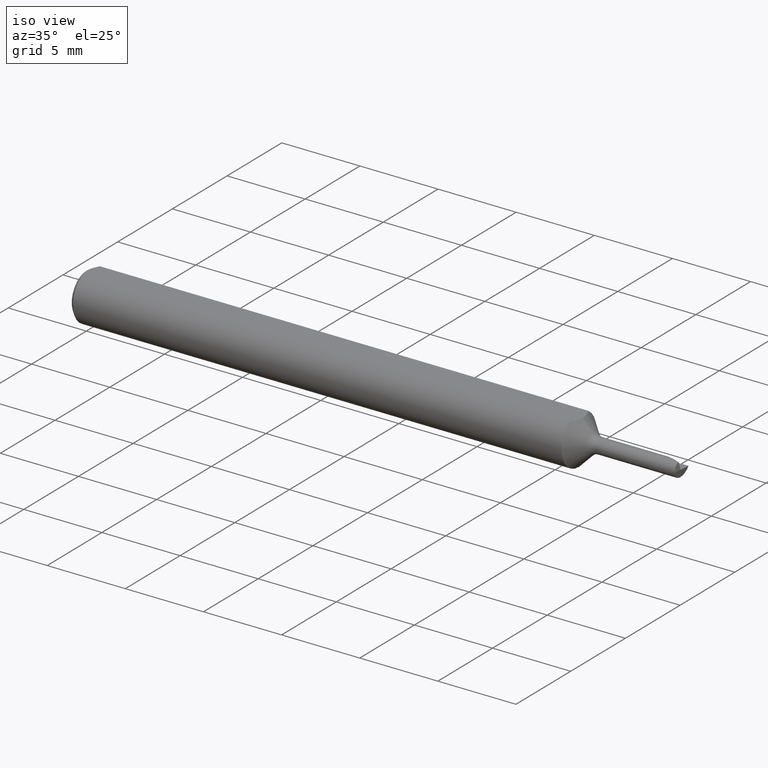
[diagram: clean part render]
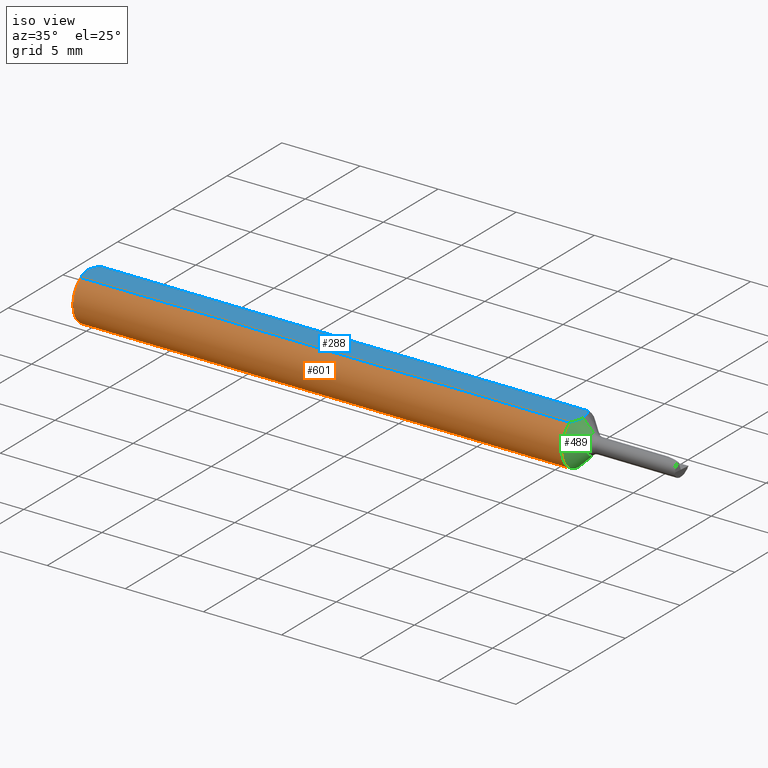
[diagram: same view with three faces highlighted in distinct colors, each labeled with its STEP entity id]
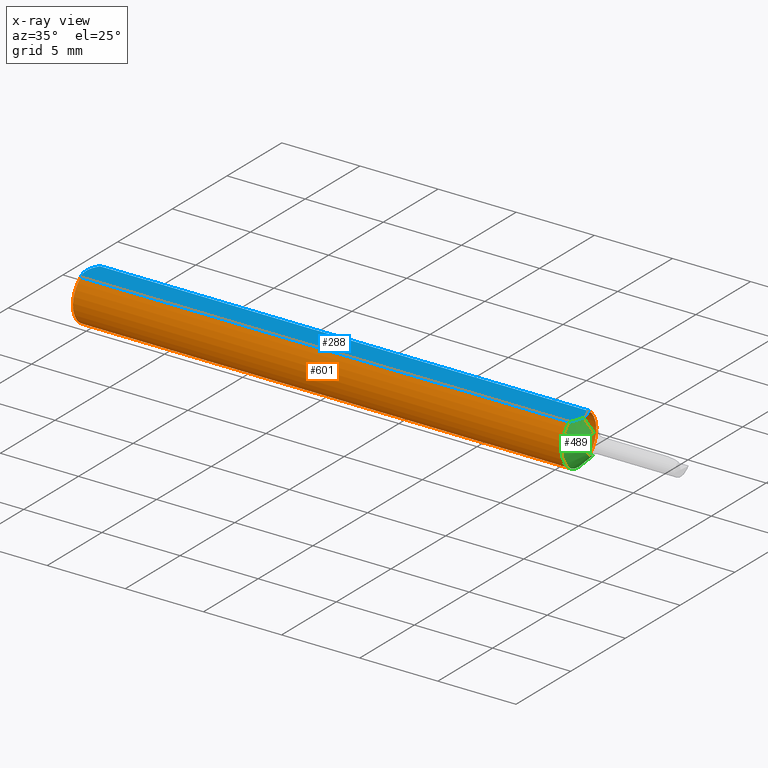
[diagram: x-ray of the same camera — body ghosted, the three highlighted faces saturated]
A machine part, iso view with three faces highlighted in distinct colors.
The next image is the same camera in x-ray (body ghosted, the three faces saturated) — at least one of them is partly hidden behind the body in this view.
Their STEP definitions:

[orange] entity #601 — the highlighted cylindrical surface (edge-blend (fillet) strip) has radius 1.5837 mm, axis along (-1, -0, -0).
#7 = CARTESIAN_POINT ( 'NONE',  ( 0.000000000000000000, 0.000000000000000000, 0.000000000000000000 ) ) ;
#10 = DIRECTION ( 'NONE',  ( 0.000000000000000000, 0.000000000000000000, 1.000000000000000000 ) ) ;
#38 = ORIENTED_EDGE ( 'NONE', *, *, #214, .T. ) ;
#50 = VERTEX_POINT ( 'NONE', #74 ) ;
#64 = CARTESIAN_POINT ( 'NONE',  ( 1.241150000000000198, 0.000000000000000000, 0.000000000000000000 ) ) ;
#66 = ORIENTED_EDGE ( 'NONE', *, *, #298, .T. ) ;
#74 = CARTESIAN_POINT ( 'NONE',  ( 1.241150000000000198, 0.03386738844375220686, 0.05235000000000000070 ) ) ;
#79 = DIRECTION ( 'NONE',  ( 0.000000000000000000, 0.000000000000000000, 1.000000000000000000 ) ) ;
#80 = VERTEX_POINT ( 'NONE', #606 ) ;
#110 = CARTESIAN_POINT ( 'NONE',  ( 1.241150000000000198, -0.03386738844375220686, 0.05235000000000000070 ) ) ;
#121 = LINE ( 'NONE', #310, #194 ) ;
#136 = VERTEX_POINT ( 'NONE', #167 ) ;
#147 = VERTEX_POINT ( 'NONE', #228 ) ;
#158 = ORIENTED_EDGE ( 'NONE', *, *, #498, .T. ) ;
#166 = FACE_OUTER_BOUND ( 'NONE', #582, .T. ) ;
#167 = CARTESIAN_POINT ( 'NONE',  ( 0.009999999999999890921, 0.03386738844375217911, 0.05235000000000001458 ) ) ;
#193 = ORIENTED_EDGE ( 'NONE', *, *, #540, .T. ) ;
#194 = VECTOR ( 'NONE', #567, 39.37007874015748143 ) ;
#214 = EDGE_CURVE ( 'NONE', #589, #633, #279, .T. ) ;
#227 = DIRECTION ( 'NONE',  ( 0.000000000000000000, 0.000000000000000000, 1.000000000000000000 ) ) ;
#228 = CARTESIAN_POINT ( 'NONE',  ( 0.009999999999999887451, 0.000000000000000000, -0.06235000000000000264 ) ) ;
#230 = AXIS2_PLACEMENT_3D ( 'NONE', #389, #625, #482 ) ;
#253 = AXIS2_PLACEMENT_3D ( 'NONE', #628, #342, #79 ) ;
#261 = EDGE_CURVE ( 'NONE', #147, #136, #618, .T. ) ;
#272 = AXIS2_PLACEMENT_3D ( 'NONE', #64, #521, #10 ) ;
#279 = LINE ( 'NONE', #578, #405 ) ;
#285 = CARTESIAN_POINT ( 'NONE',  ( 0.01000000000000840841, -0.03386738844395137393, 0.05235000000000001458 ) ) ;
#298 = EDGE_CURVE ( 'NONE', #633, #147, #511, .T. ) ;
#310 = CARTESIAN_POINT ( 'NONE',  ( 0.000000000000000000, 0.03386738844375220686, 0.05235000000000000070 ) ) ;
#314 = DIRECTION ( 'NONE',  ( -1.000000000000000000, -0.000000000000000000, -0.000000000000000000 ) ) ;
#331 = DIRECTION ( 'NONE',  ( 1.000000000000000000, 0.000000000000000000, 0.000000000000000000 ) ) ;
#336 = EDGE_CURVE ( 'NONE', #80, #589, #416, .T. ) ;
#342 = DIRECTION ( 'NONE',  ( -1.000000000000000000, -0.000000000000000000, -0.000000000000000000 ) ) ;
#343 = AXIS2_PLACEMENT_3D ( 'NONE', #431, #331, #538 ) ;
#389 = CARTESIAN_POINT ( 'NONE',  ( 0.009999999999999887451, 0.000000000000000000, 0.000000000000000000 ) ) ;
#405 = VECTOR ( 'NONE', #437, 39.37007874015748143 ) ;
#416 = CIRCLE ( 'NONE', #253, 0.06235000000000000264 ) ;
#431 = CARTESIAN_POINT ( 'NONE',  ( 0.009999999999999887451, 0.000000000000000000, 0.000000000000000000 ) ) ;
#437 = DIRECTION ( 'NONE',  ( -1.000000000000000000, -0.000000000000000000, -0.000000000000000000 ) ) ;
#463 = AXIS2_PLACEMENT_3D ( 'NONE', #7, #314, #227 ) ;
#482 = DIRECTION ( 'NONE',  ( 0.000000000000000000, 0.000000000000000000, -1.000000000000000000 ) ) ;
#498 = EDGE_CURVE ( 'NONE', #136, #50, #121, .T. ) ;
#502 = ORIENTED_EDGE ( 'NONE', *, *, #336, .T. ) ;
#511 = CIRCLE ( 'NONE', #230, 0.06235000000000000264 ) ;
#513 = CIRCLE ( 'NONE', #272, 0.06235000000000000264 ) ;
#521 = DIRECTION ( 'NONE',  ( -1.000000000000000000, -0.000000000000000000, -0.000000000000000000 ) ) ;
#538 = DIRECTION ( 'NONE',  ( 0.000000000000000000, 0.000000000000000000, -1.000000000000000000 ) ) ;
#540 = EDGE_CURVE ( 'NONE', #50, #80, #513, .T. ) ;
#567 = DIRECTION ( 'NONE',  ( 1.000000000000000000, 0.000000000000000000, 0.000000000000000000 ) ) ;
#570 = CYLINDRICAL_SURFACE ( 'NONE', #463, 0.06235000000000000264 ) ;
#578 = CARTESIAN_POINT ( 'NONE',  ( 0.000000000000000000, -0.03386738844375220686, 0.05235000000000000070 ) ) ;
#582 = EDGE_LOOP ( 'NONE', ( #193, #502, #38, #66, #626, #158 ) ) ;
#589 = VERTEX_POINT ( 'NONE', #110 ) ;
#601 = ADVANCED_FACE ( 'NONE', ( #166 ), #570, .T. ) ;
#606 = CARTESIAN_POINT ( 'NONE',  ( 1.241150000000000198, 7.635672792683746671E-18, -0.06235000000000000264 ) ) ;
#618 = CIRCLE ( 'NONE', #343, 0.06235000000000000264 ) ;
#625 = DIRECTION ( 'NONE',  ( 1.000000000000000000, 0.000000000000000000, 0.000000000000000000 ) ) ;
#626 = ORIENTED_EDGE ( 'NONE', *, *, #261, .T. ) ;
#628 = CARTESIAN_POINT ( 'NONE',  ( 1.241150000000000198, 0.000000000000000000, 0.000000000000000000 ) ) ;
#633 = VERTEX_POINT ( 'NONE', #285 ) ;

[blue] entity #288 — the highlighted planar face has unit normal (0, 0, -1).
#3 = B_SPLINE_CURVE_WITH_KNOTS ( 'NONE', 3,
 ( #346, #159, #496, #644, #546, #402 ),
 .UNSPECIFIED., .F., .F.,
 ( 4, 2, 4 ),
 ( 0.0009229516234078821539, 0.001371626545108044996, 0.001820301466808207621 ),
 .UNSPECIFIED. ) ;
#18 = CARTESIAN_POINT ( 'NONE',  ( 0.001055043921644571291, -0.01186408073217194367, 0.05235000000000002152 ) ) ;
#20 = CARTESIAN_POINT ( 'NONE',  ( 1.241150000000000198, -0.03386738844375220686, 0.05235000000000000070 ) ) ;
#44 = CARTESIAN_POINT ( 'NONE',  ( 1.243992034642578348, 0.02863519109676606472, 0.05235000000000002152 ) ) ;
#50 = VERTEX_POINT ( 'NONE', #74 ) ;
#59 = ORIENTED_EDGE ( 'NONE', *, *, #557, .F. ) ;
#70 = EDGE_LOOP ( 'NONE', ( #551, #537, #460, #86, #59, #490 ) ) ;
#74 = CARTESIAN_POINT ( 'NONE',  ( 1.241150000000000198, 0.03386738844375220686, 0.05235000000000000070 ) ) ;
#86 = ORIENTED_EDGE ( 'NONE', *, *, #214, .F. ) ;
#110 = CARTESIAN_POINT ( 'NONE',  ( 1.241150000000000198, -0.03386738844375220686, 0.05235000000000000070 ) ) ;
#121 = LINE ( 'NONE', #310, #194 ) ;
#122 = CARTESIAN_POINT ( 'NONE',  ( -1.070637973615595603E-15, -0.005965286321711177862, 0.05235000000000002152 ) ) ;
#136 = VERTEX_POINT ( 'NONE', #167 ) ;
#144 = DIRECTION ( 'NONE',  ( 0.000000000000000000, 0.000000000000000000, -1.000000000000000000 ) ) ;
#149 = FACE_OUTER_BOUND ( 'NONE', #70, .T. ) ;
#159 = CARTESIAN_POINT ( 'NONE',  ( 0.007185421074056205608, 0.02868573718286560742, 0.05235000000000002152 ) ) ;
#163 = CARTESIAN_POINT ( 'NONE',  ( 0.000000000000000000, 0.000000000000000000, 0.05235000000000033377 ) ) ;
#167 = CARTESIAN_POINT ( 'NONE',  ( 0.009999999999999890921, 0.03386738844375217911, 0.05235000000000001458 ) ) ;
#177 = EDGE_CURVE ( 'NONE', #444, #633, #560, .T. ) ;
#192 = AXIS2_PLACEMENT_3D ( 'NONE', #238, #144, #586 ) ;
#194 = VECTOR ( 'NONE', #567, 39.37007874015748143 ) ;
#201 = CARTESIAN_POINT ( 'NONE',  ( 1.251150000000000206, 0.005920815533600993531, 0.05235000000000002152 ) ) ;
#214 = EDGE_CURVE ( 'NONE', #589, #633, #279, .T. ) ;
#219 = CARTESIAN_POINT ( 'NONE',  ( 1.251150000000000206, -1.477725056715825224E-21, 0.05235000000000001458 ) ) ;
#238 = CARTESIAN_POINT ( 'NONE',  ( 1.500000000000000222, 0.06235000000000000264, 0.05235000000000001458 ) ) ;
#241 = PLANE ( 'NONE',  #192 ) ;
#255 = CARTESIAN_POINT ( 'NONE',  ( 1.246488788636946898, 0.02320328458619740422, 0.05235000000000002152 ) ) ;
#273 = CARTESIAN_POINT ( 'NONE',  ( 0.000000000000000000, 0.000000000000000000, 0.05235000000000033377 ) ) ;
#276 = B_SPLINE_CURVE_WITH_KNOTS ( 'NONE', 3,
 ( #552, #44, #255, #634, #201, #392 ),
 .UNSPECIFIED., .F., .F.,
 ( 4, 2, 4 ),
 ( 0.002018861167849298529, 0.002467762199066077071, 0.002916663230282855179 ),
 .UNSPECIFIED. ) ;
#279 = LINE ( 'NONE', #578, #405 ) ;
#285 = CARTESIAN_POINT ( 'NONE',  ( 0.01000000000000840841, -0.03386738844395137393, 0.05235000000000001458 ) ) ;
#288 = ADVANCED_FACE ( 'NONE', ( #149 ), #241, .F. ) ;
#310 = CARTESIAN_POINT ( 'NONE',  ( 0.000000000000000000, 0.03386738844375220686, 0.05235000000000000070 ) ) ;
#346 = CARTESIAN_POINT ( 'NONE',  ( 0.009999999999999890921, 0.03386738844375217911, 0.05235000000000001458 ) ) ;
#353 = EDGE_CURVE ( 'NONE', #50, #436, #276, .T. ) ;
#392 = CARTESIAN_POINT ( 'NONE',  ( 1.251150000000000206, -1.477725056715825224E-21, 0.05235000000000001458 ) ) ;
#402 = CARTESIAN_POINT ( 'NONE',  ( 0.000000000000000000, 0.000000000000000000, 0.05235000000000033377 ) ) ;
#405 = VECTOR ( 'NONE', #437, 39.37007874015748143 ) ;
#411 = EDGE_CURVE ( 'NONE', #136, #444, #3, .T. ) ;
#412 = CARTESIAN_POINT ( 'NONE',  ( 1.244001488371463182, -0.02861778674340263035, 0.05235000000000002152 ) ) ;
#421 = CARTESIAN_POINT ( 'NONE',  ( 0.007163450771416182694, -0.02864528976632487248, 0.05235000000000001458 ) ) ;
#436 = VERTEX_POINT ( 'NONE', #603 ) ;
#437 = DIRECTION ( 'NONE',  ( -1.000000000000000000, -0.000000000000000000, -0.000000000000000000 ) ) ;
#444 = VERTEX_POINT ( 'NONE', #163 ) ;
#460 = ORIENTED_EDGE ( 'NONE', *, *, #177, .T. ) ;
#470 = CARTESIAN_POINT ( 'NONE',  ( 0.004679365186825695105, -0.02325953974091124477, 0.05235000000000000764 ) ) ;
#490 = ORIENTED_EDGE ( 'NONE', *, *, #353, .F. ) ;
#496 = CARTESIAN_POINT ( 'NONE',  ( 0.004671770759546769666, 0.02323517832780105236, 0.05235000000000002152 ) ) ;
#498 = EDGE_CURVE ( 'NONE', #136, #50, #121, .T. ) ;
#517 = CARTESIAN_POINT ( 'NONE',  ( 1.250078879331740112, -0.01191647624495715922, 0.05235000000000002152 ) ) ;
#520 = B_SPLINE_CURVE_WITH_KNOTS ( 'NONE', 3,
 ( #219, #611, #517, #614, #412, #20 ),
 .UNSPECIFIED., .F., .F.,
 ( 4, 2, 4 ),
 ( 0.002916663230282855179, 0.003365861382119312694, 0.003815059533955770209 ),
 .UNSPECIFIED. ) ;
#537 = ORIENTED_EDGE ( 'NONE', *, *, #411, .T. ) ;
#546 = CARTESIAN_POINT ( 'NONE',  ( -1.099542139246802830E-15, 0.005954997531773979953, 0.05235000000000002152 ) ) ;
#551 = ORIENTED_EDGE ( 'NONE', *, *, #498, .F. ) ;
#552 = CARTESIAN_POINT ( 'NONE',  ( 1.241150000000000198, 0.03386738844375220686, 0.05235000000000000070 ) ) ;
#557 = EDGE_CURVE ( 'NONE', #436, #589, #520, .T. ) ;
#560 = B_SPLINE_CURVE_WITH_KNOTS ( 'NONE', 3,
 ( #273, #122, #18, #470, #421, #612 ),
 .UNSPECIFIED., .F., .F.,
 ( 4, 2, 4 ),
 ( 0.001820301466808207621, 0.002269751589840481119, 0.002719201712872754834 ),
 .UNSPECIFIED. ) ;
#567 = DIRECTION ( 'NONE',  ( 1.000000000000000000, 0.000000000000000000, 0.000000000000000000 ) ) ;
#578 = CARTESIAN_POINT ( 'NONE',  ( 0.000000000000000000, -0.03386738844375220686, 0.05235000000000000070 ) ) ;
#586 = DIRECTION ( 'NONE',  ( -1.000000000000000000, 0.000000000000000000, -0.000000000000000000 ) ) ;
#589 = VERTEX_POINT ( 'NONE', #110 ) ;
#603 = CARTESIAN_POINT ( 'NONE',  ( 1.251150000000000206, -1.477725056715825224E-21, 0.05235000000000001458 ) ) ;
#611 = CARTESIAN_POINT ( 'NONE',  ( 1.251150000000000206, -0.005924734429433299761, 0.05235000000000002152 ) ) ;
#612 = CARTESIAN_POINT ( 'NONE',  ( 0.01000000000000840841, -0.03386738844395137393, 0.05235000000000001458 ) ) ;
#614 = CARTESIAN_POINT ( 'NONE',  ( 1.246482645487523522, -0.02321992653401850834, 0.05235000000000001458 ) ) ;
#633 = VERTEX_POINT ( 'NONE', #285 ) ;
#634 = CARTESIAN_POINT ( 'NONE',  ( 1.250078615661968762, 0.01191463382135336986, 0.05235000000000001458 ) ) ;
#644 = CARTESIAN_POINT ( 'NONE',  ( 0.001063697276021357847, 0.01189177144351693735, 0.05235000000000001458 ) ) ;

[green] entity #489 — the highlighted conical surface has half-angle 45 deg.
#11 = LINE ( 'NONE', #475, #447 ) ;
#20 = CARTESIAN_POINT ( 'NONE',  ( 1.241150000000000198, -0.03386738844375220686, 0.05235000000000000070 ) ) ;
#48 = AXIS2_PLACEMENT_3D ( 'NONE', #474, #609, #366 ) ;
#52 = EDGE_CURVE ( 'NONE', #539, #483, #151, .T. ) ;
#79 = DIRECTION ( 'NONE',  ( 0.000000000000000000, 0.000000000000000000, 1.000000000000000000 ) ) ;
#80 = VERTEX_POINT ( 'NONE', #606 ) ;
#98 = LINE ( 'NONE', #249, #141 ) ;
#110 = CARTESIAN_POINT ( 'NONE',  ( 1.241150000000000198, -0.03386738844375220686, 0.05235000000000000070 ) ) ;
#134 = EDGE_CURVE ( 'NONE', #539, #80, #11, .T. ) ;
#141 = VECTOR ( 'NONE', #396, 39.37007874015748143 ) ;
#151 = CIRCLE ( 'NONE', #323, 0.02582233047033638193 ) ;
#172 = DIRECTION ( 'NONE',  ( 0.000000000000000000, 0.000000000000000000, 1.000000000000000000 ) ) ;
#176 = DIRECTION ( 'NONE',  ( -1.000000000000000000, -0.000000000000000000, -0.000000000000000000 ) ) ;
#180 = CARTESIAN_POINT ( 'NONE',  ( 1.277677669529663662, 3.162323435702261239E-18, -0.02582233047033637499 ) ) ;
#211 = ORIENTED_EDGE ( 'NONE', *, *, #376, .T. ) ;
#219 = CARTESIAN_POINT ( 'NONE',  ( 1.251150000000000206, -1.477725056715825224E-21, 0.05235000000000001458 ) ) ;
#246 = CARTESIAN_POINT ( 'NONE',  ( 1.277677669529663662, 0.000000000000000000, 0.02582233047033637499 ) ) ;
#249 = CARTESIAN_POINT ( 'NONE',  ( 1.277677669529663662, 0.000000000000000000, 0.02582233047033638193 ) ) ;
#250 = ORIENTED_EDGE ( 'NONE', *, *, #134, .F. ) ;
#253 = AXIS2_PLACEMENT_3D ( 'NONE', #628, #342, #79 ) ;
#323 = AXIS2_PLACEMENT_3D ( 'NONE', #413, #176, #172 ) ;
#336 = EDGE_CURVE ( 'NONE', #80, #589, #416, .T. ) ;
#342 = DIRECTION ( 'NONE',  ( -1.000000000000000000, -0.000000000000000000, -0.000000000000000000 ) ) ;
#366 = DIRECTION ( 'NONE',  ( 0.000000000000000000, 0.000000000000000000, 1.000000000000000000 ) ) ;
#376 = EDGE_CURVE ( 'NONE', #483, #436, #98, .T. ) ;
#396 = DIRECTION ( 'NONE',  ( -0.7071067811865459074, 0.000000000000000000, 0.7071067811865491270 ) ) ;
#412 = CARTESIAN_POINT ( 'NONE',  ( 1.244001488371463182, -0.02861778674340263035, 0.05235000000000002152 ) ) ;
#413 = CARTESIAN_POINT ( 'NONE',  ( 1.277677669529663662, 0.000000000000000000, 0.000000000000000000 ) ) ;
#416 = CIRCLE ( 'NONE', #253, 0.06235000000000000264 ) ;
#424 = FACE_OUTER_BOUND ( 'NONE', #488, .T. ) ;
#436 = VERTEX_POINT ( 'NONE', #603 ) ;
#447 = VECTOR ( 'NONE', #529, 39.37007874015748143 ) ;
#472 = CONICAL_SURFACE ( 'NONE', #48, 0.02582233047033638193, 0.7853981633974506105 ) ;
#474 = CARTESIAN_POINT ( 'NONE',  ( 1.277677669529663662, 0.000000000000000000, 0.000000000000000000 ) ) ;
#475 = CARTESIAN_POINT ( 'NONE',  ( 1.277677669529663662, 3.162323435702262010E-18, -0.02582233047033638193 ) ) ;
#483 = VERTEX_POINT ( 'NONE', #246 ) ;
#488 = EDGE_LOOP ( 'NONE', ( #250, #600, #211, #548, #542 ) ) ;
#489 = ADVANCED_FACE ( 'NONE', ( #424 ), #472, .T. ) ;
#517 = CARTESIAN_POINT ( 'NONE',  ( 1.250078879331740112, -0.01191647624495715922, 0.05235000000000002152 ) ) ;
#520 = B_SPLINE_CURVE_WITH_KNOTS ( 'NONE', 3,
 ( #219, #611, #517, #614, #412, #20 ),
 .UNSPECIFIED., .F., .F.,
 ( 4, 2, 4 ),
 ( 0.002916663230282855179, 0.003365861382119312694, 0.003815059533955770209 ),
 .UNSPECIFIED. ) ;
#529 = DIRECTION ( 'NONE',  ( -0.7071067811865459074, 8.659560562354952580E-17, -0.7071067811865491270 ) ) ;
#539 = VERTEX_POINT ( 'NONE', #180 ) ;
#542 = ORIENTED_EDGE ( 'NONE', *, *, #336, .F. ) ;
#548 = ORIENTED_EDGE ( 'NONE', *, *, #557, .T. ) ;
#557 = EDGE_CURVE ( 'NONE', #436, #589, #520, .T. ) ;
#589 = VERTEX_POINT ( 'NONE', #110 ) ;
#600 = ORIENTED_EDGE ( 'NONE', *, *, #52, .T. ) ;
#603 = CARTESIAN_POINT ( 'NONE',  ( 1.251150000000000206, -1.477725056715825224E-21, 0.05235000000000001458 ) ) ;
#606 = CARTESIAN_POINT ( 'NONE',  ( 1.241150000000000198, 7.635672792683746671E-18, -0.06235000000000000264 ) ) ;
#609 = DIRECTION ( 'NONE',  ( -1.000000000000000000, -0.000000000000000000, -0.000000000000000000 ) ) ;
#611 = CARTESIAN_POINT ( 'NONE',  ( 1.251150000000000206, -0.005924734429433299761, 0.05235000000000002152 ) ) ;
#614 = CARTESIAN_POINT ( 'NONE',  ( 1.246482645487523522, -0.02321992653401850834, 0.05235000000000001458 ) ) ;
#628 = CARTESIAN_POINT ( 'NONE',  ( 1.241150000000000198, 0.000000000000000000, 0.000000000000000000 ) ) ;